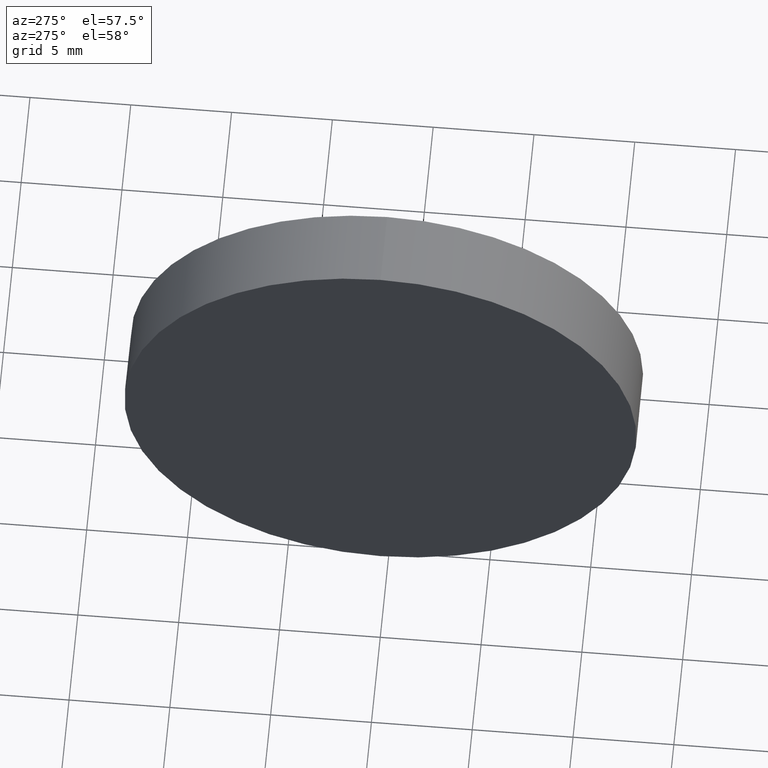
[diagram: clean part render]
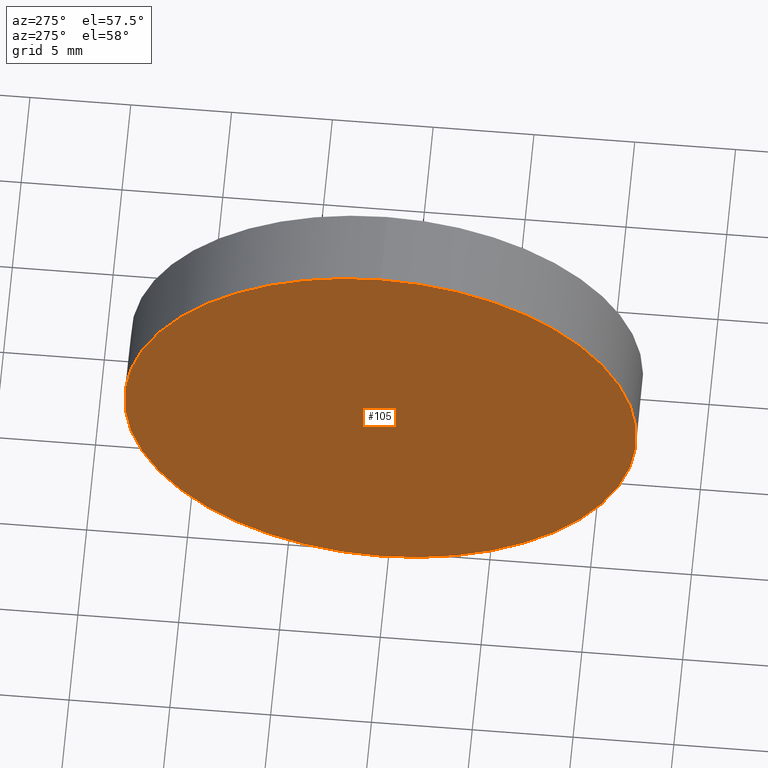
[diagram: same view with one face highlighted and labeled with its STEP entity id]
A machine part, auxiliary view. The second image highlights one B-rep face of the part: STEP entity #105.
In plain terms, the highlighted planar face has unit normal (1, 0, 0).
Its self-contained STEP definition (entity closure, byte-faithful):
#6 = ORIENTED_EDGE ( 'NONE', *, *, #35, .T. ) ;
#18 = VERTEX_POINT ( 'NONE', #49 ) ;
#32 = CARTESIAN_POINT ( 'NONE',  ( 544.3956546235012900, 475.3741786464798900, 0.0000000000000000000 ) ) ;
#33 = CIRCLE ( 'NONE', #43, 12.70000000000004500 ) ;
#35 = EDGE_CURVE ( 'NONE', #18, #115, #33, .T. ) ;
#37 = DIRECTION ( 'NONE',  ( 0.0000000000000000000, 0.0000000000000000000, 1.000000000000000000 ) ) ;
#43 = AXIS2_PLACEMENT_3D ( 'NONE', #32, #128, #157 ) ;
#49 = CARTESIAN_POINT ( 'NONE',  ( 544.3956546235012900, 475.3741786464798900, -12.70000000000004500 ) ) ;
#65 = CARTESIAN_POINT ( 'NONE',  ( 544.3956546235012900, 475.3741786464798900, 0.0000000000000000000 ) ) ;
#67 = CARTESIAN_POINT ( 'NONE',  ( 544.3956546235012900, 475.3741786464798900, 0.0000000000000000000 ) ) ;
#74 = CIRCLE ( 'NONE', #92, 12.70000000000004500 ) ;
#78 = AXIS2_PLACEMENT_3D ( 'NONE', #65, #153, #97 ) ;
#92 = AXIS2_PLACEMENT_3D ( 'NONE', #67, #179, #37 ) ;
#97 = DIRECTION ( 'NONE',  ( 0.0000000000000000000, 0.0000000000000000000, -1.000000000000000000 ) ) ;
#98 = EDGE_LOOP ( 'NONE', ( #107, #6 ) ) ;
#105 = ADVANCED_FACE ( 'NONE', ( #176 ), #121, .F. ) ;
#106 = EDGE_CURVE ( 'NONE', #115, #18, #74, .T. ) ;
#107 = ORIENTED_EDGE ( 'NONE', *, *, #106, .T. ) ;
#115 = VERTEX_POINT ( 'NONE', #138 ) ;
#121 = PLANE ( 'NONE',  #78 ) ;
#128 = DIRECTION ( 'NONE',  ( -1.000000000000000000, -0.0000000000000000000, -0.0000000000000000000 ) ) ;
#138 = CARTESIAN_POINT ( 'NONE',  ( 544.3956546235012900, 475.3741786464798900, 12.70000000000004500 ) ) ;
#153 = DIRECTION ( 'NONE',  ( 1.000000000000000000, 0.0000000000000000000, 0.0000000000000000000 ) ) ;
#157 = DIRECTION ( 'NONE',  ( 0.0000000000000000000, 0.0000000000000000000, 1.000000000000000000 ) ) ;
#176 = FACE_OUTER_BOUND ( 'NONE', #98, .T. ) ;
#179 = DIRECTION ( 'NONE',  ( -1.000000000000000000, -0.0000000000000000000, -0.0000000000000000000 ) ) ;